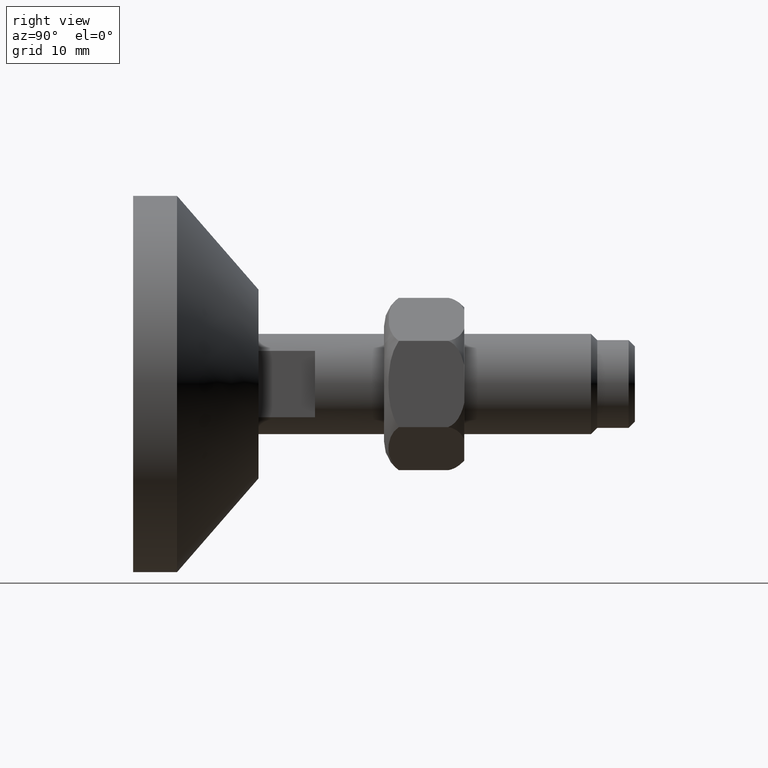
[diagram: clean part render]
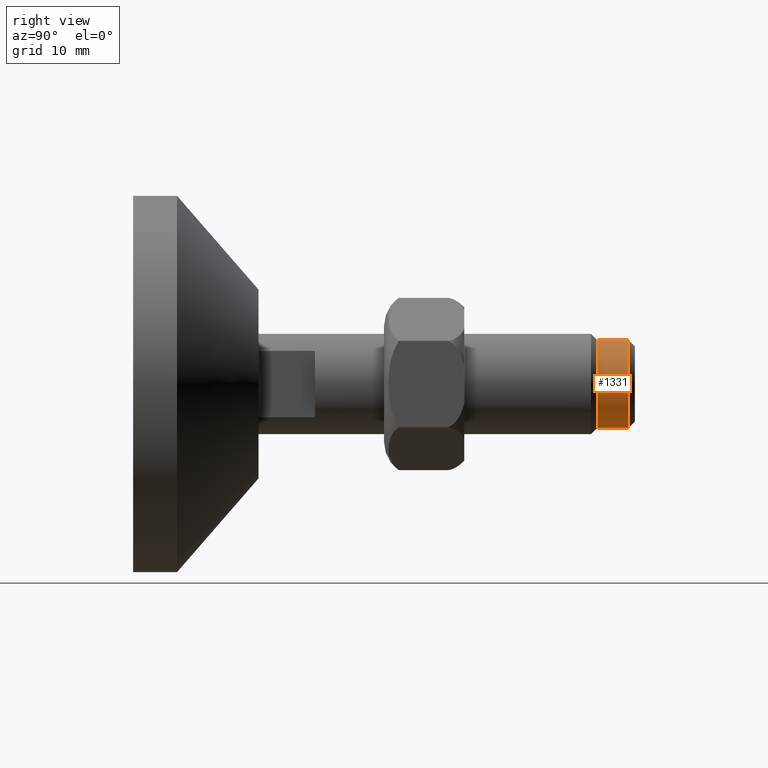
[diagram: same view with one face highlighted and labeled with its STEP entity id]
A machine part, right view. The second image highlights one B-rep face of the part: STEP entity #1331.
In plain terms, the highlighted cylindrical surface (partial cylindrical patch) has radius 7 mm, axis along (-0, 1, -0).
Its self-contained STEP definition (entity closure, byte-faithful):
#45 = EDGE_CURVE ( 'NONE', #1123, #1117, #502, .T. ) ;
#85 = ORIENTED_EDGE ( 'NONE', *, *, #1020, .T. ) ;
#101 = ORIENTED_EDGE ( 'NONE', *, *, #45, .T. ) ;
#242 = CARTESIAN_POINT ( 'NONE',  ( 0.0000000000000000000, 73.00000000000000000, 0.0000000000000000000 ) ) ;
#243 = DIRECTION ( 'NONE',  ( -0.0000000000000000000, 1.000000000000000000, -0.0000000000000000000 ) ) ;
#244 = DIRECTION ( 'NONE',  ( 0.0000000000000000000, 0.0000000000000000000, 1.000000000000000000 ) ) ;
#502 = CIRCLE ( 'NONE', #728, 7.000000000000000000 ) ;
#562 = LINE ( 'NONE', #1401, #563 ) ;
#563 = VECTOR ( 'NONE', #1402, 1000.000000000000000 ) ;
#570 = LINE ( 'NONE', #1417, #571 ) ;
#571 = VECTOR ( 'NONE', #1418, 1000.000000000000000 ) ;
#579 = CIRCLE ( 'NONE', #1426, 7.000000000000000000 ) ;
#592 = FACE_OUTER_BOUND ( 'NONE', #690, .T. ) ;
#593 = CYLINDRICAL_SURFACE ( 'NONE', #1475, 7.000000000000000000 ) ;
#690 = EDGE_LOOP ( 'NONE', ( #101, #85, #1429, #1309 ) ) ;
#728 = AXIS2_PLACEMENT_3D ( 'NONE', #835, #830, #834 ) ;
#830 = DIRECTION ( 'NONE',  ( -0.0000000000000000000, 1.000000000000000000, -0.0000000000000000000 ) ) ;
#834 = DIRECTION ( 'NONE',  ( 0.0000000000000000000, 0.0000000000000000000, 1.000000000000000000 ) ) ;
#835 = CARTESIAN_POINT ( 'NONE',  ( 0.0000000000000000000, 74.00000000000004300, 0.0000000000000000000 ) ) ;
#919 = CARTESIAN_POINT ( 'NONE',  ( 0.0000000000000000000, 79.00000000000000000, 0.0000000000000000000 ) ) ;
#920 = DIRECTION ( 'NONE',  ( 0.0000000000000000000, -1.000000000000000000, 0.0000000000000000000 ) ) ;
#921 = DIRECTION ( 'NONE',  ( 0.0000000000000000000, 0.0000000000000000000, 1.000000000000000000 ) ) ;
#965 = CARTESIAN_POINT ( 'NONE',  ( 8.572527594031473200E-016, 74.00000000000004300, -7.000000000000000000 ) ) ;
#971 = CARTESIAN_POINT ( 'NONE',  ( 0.0000000000000000000, 74.00000000000004300, 7.000000000000000000 ) ) ;
#982 = CARTESIAN_POINT ( 'NONE',  ( 0.0000000000000000000, 79.00000000000000000, 7.000000000000000000 ) ) ;
#983 = CARTESIAN_POINT ( 'NONE',  ( 8.572527594031473200E-016, 79.00000000000000000, -7.000000000000000000 ) ) ;
#1013 = EDGE_CURVE ( 'NONE', #1123, #1134, #562, .T. ) ;
#1020 = EDGE_CURVE ( 'NONE', #1117, #1135, #570, .T. ) ;
#1025 = EDGE_CURVE ( 'NONE', #1135, #1134, #579, .T. ) ;
#1117 = VERTEX_POINT ( 'NONE', #965 ) ;
#1123 = VERTEX_POINT ( 'NONE', #971 ) ;
#1134 = VERTEX_POINT ( 'NONE', #982 ) ;
#1135 = VERTEX_POINT ( 'NONE', #983 ) ;
#1309 = ORIENTED_EDGE ( 'NONE', *, *, #1013, .F. ) ;
#1331 = ADVANCED_FACE ( 'NONE', ( #592 ), #593, .T. ) ;
#1401 = CARTESIAN_POINT ( 'NONE',  ( 0.0000000000000000000, 73.00000000000000000, 7.000000000000000000 ) ) ;
#1402 = DIRECTION ( 'NONE',  ( -0.0000000000000000000, 1.000000000000000000, -0.0000000000000000000 ) ) ;
#1417 = CARTESIAN_POINT ( 'NONE',  ( 8.572527594031473200E-016, 73.00000000000000000, -7.000000000000000000 ) ) ;
#1418 = DIRECTION ( 'NONE',  ( -0.0000000000000000000, 1.000000000000000000, -0.0000000000000000000 ) ) ;
#1426 = AXIS2_PLACEMENT_3D ( 'NONE', #919, #920, #921 ) ;
#1429 = ORIENTED_EDGE ( 'NONE', *, *, #1025, .T. ) ;
#1475 = AXIS2_PLACEMENT_3D ( 'NONE', #242, #243, #244 ) ;